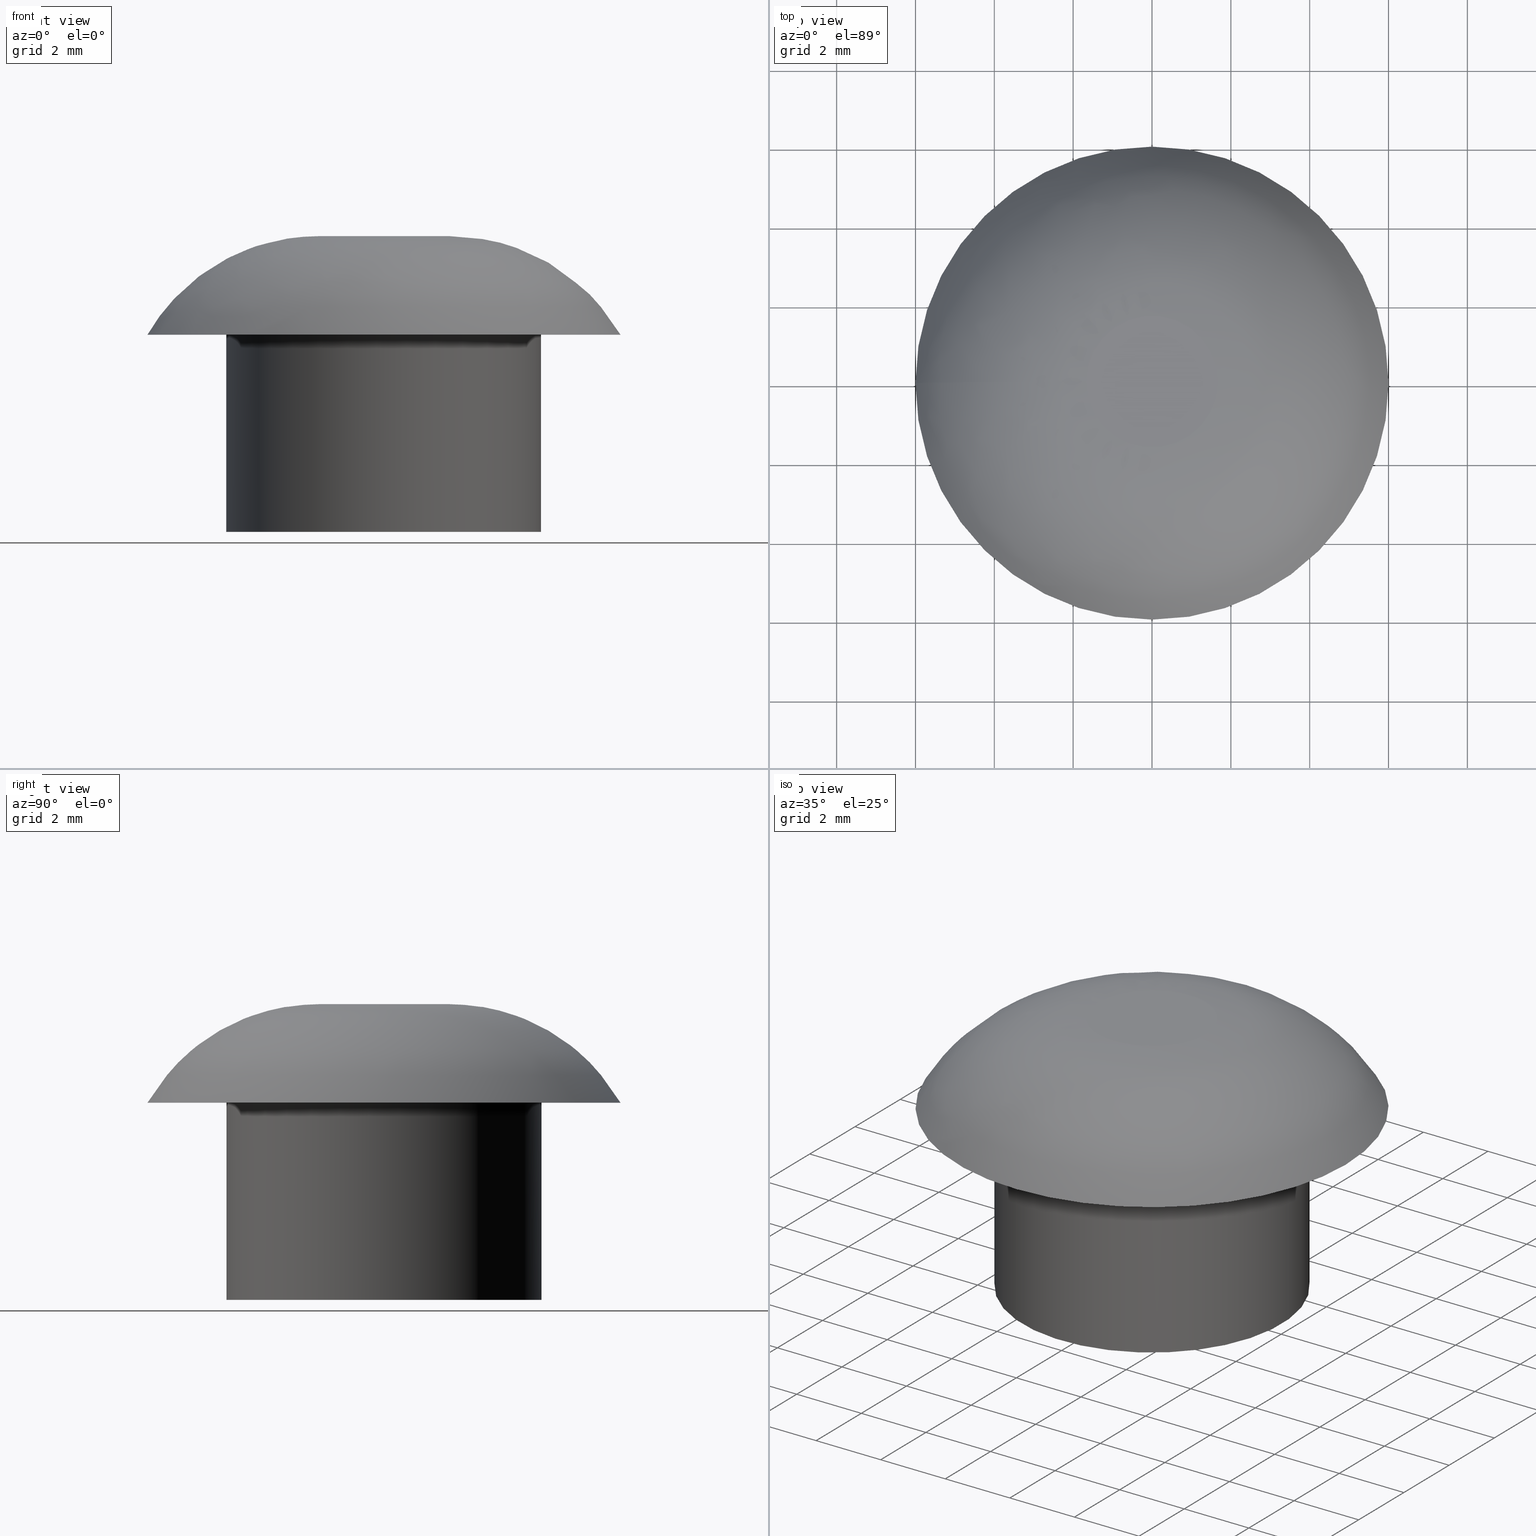
[diagram: canonical four-view strip — front | top / right | iso, engineering-drawing reading convention]
A machine part, canonical four-view strip (front | top / right | iso — engineering-drawing reading convention). The complete STEP part file that produces these views, byte-faithful:
ISO-10303-21;
HEADER;
/* Generated by software containing ST-Developer
 * from STEP Tools, Inc. (www.steptools.com) 
 */

FILE_DESCRIPTION(
/* description */ (''),
/* implementation_level */ '2;1');

FILE_NAME(
/* name */ 
'Q:\\Catalogo\\2_Accessori Dierre\\Per Download Web e catalogo cartace
o\\CATALOGO TAPPI DI CHIUSURA\\PAGINA 88\\CTPTF0000014.stp',
/* time_stamp */ '2018-10-29T10:04:48+01:00',
/* author */ ('fzagni'),
/* organization */ (''),
/* preprocessor_version */ 'ST-DEVELOPER v16.1',
/* originating_system */ 'Autodesk Inventor 2016',
/* authorisation */ '');

FILE_SCHEMA (('AUTOMOTIVE_DESIGN { 1 0 10303 214 3 1 1 }'));
ENDSEC;

DATA;
#10=MECHANICAL_DESIGN_GEOMETRIC_PRESENTATION_REPRESENTATION('',(#13),#187);
#11=SHAPE_REPRESENTATION_RELATIONSHIP('SRR','None',#196,#12);
#12=ADVANCED_BREP_SHAPE_REPRESENTATION('',(#14),#186);
#13=STYLED_ITEM('',(#205),#14);
#14=MANIFOLD_SOLID_BREP('Solido1',#90);
#15=(
BOUNDED_CURVE()
B_SPLINE_CURVE(2,(#179,#180,#181),.UNSPECIFIED.,.F.,.F.)
B_SPLINE_CURVE_WITH_KNOTS((3,3),(-1.5707963267949,-0.523598775598299),
 .UNSPECIFIED.)
CURVE()
GEOMETRIC_REPRESENTATION_ITEM()
RATIONAL_B_SPLINE_CURVE((1.,0.866025403784438,1.))
REPRESENTATION_ITEM('')
);
#16=(
BOUNDED_SURFACE()
B_SPLINE_SURFACE(2,2,((#150,#151,#152,#153,#154,#155,#156,#157,#158),(#159,
#160,#161,#162,#163,#164,#165,#166,#167),(#168,#169,#170,#171,#172,#173,
#174,#175,#176)),.UNSPECIFIED.,.F.,.T.,.F.)
B_SPLINE_SURFACE_WITH_KNOTS((3,3),(3,2,2,2,3),(0.523598775598299,1.5707963267949),
(-3.14159265358979,-1.5707963267949,0.,1.5707963267949,3.14159265358979),
 .UNSPECIFIED.)
GEOMETRIC_REPRESENTATION_ITEM()
RATIONAL_B_SPLINE_SURFACE(((1.,0.707106781186548,1.,0.707106781186548,1.,
0.707106781186548,1.,0.707106781186548,1.),(0.866025403784438,0.612372435695794,
0.866025403784438,0.612372435695794,0.866025403784438,0.612372435695794,
0.866025403784438,0.612372435695794,0.866025403784438),(1.,0.707106781186548,
1.,0.707106781186548,1.,0.707106781186548,1.,0.707106781186548,1.)))
REPRESENTATION_ITEM('')
SURFACE()
);
#17=PLANE('',#98);
#18=PLANE('',#99);
#19=PLANE('',#103);
#20=PLANE('',#104);
#21=FACE_BOUND('',#33,.T.);
#22=FACE_BOUND('',#35,.T.);
#23=FACE_BOUND('',#37,.T.);
#24=FACE_BOUND('',#39,.T.);
#25=FACE_OUTER_BOUND('',#32,.T.);
#26=FACE_OUTER_BOUND('',#34,.T.);
#27=FACE_OUTER_BOUND('',#36,.T.);
#28=FACE_OUTER_BOUND('',#38,.T.);
#29=FACE_OUTER_BOUND('',#40,.T.);
#30=FACE_OUTER_BOUND('',#41,.T.);
#31=FACE_OUTER_BOUND('',#42,.T.);
#32=EDGE_LOOP('',(#65));
#33=EDGE_LOOP('',(#66));
#34=EDGE_LOOP('',(#67));
#35=EDGE_LOOP('',(#68));
#36=EDGE_LOOP('',(#69));
#37=EDGE_LOOP('',(#70));
#38=EDGE_LOOP('',(#71,#72));
#39=EDGE_LOOP('',(#73));
#40=EDGE_LOOP('',(#74,#75,#76,#77,#78));
#41=EDGE_LOOP('',(#79));
#42=EDGE_LOOP('',(#80));
#43=CIRCLE('',#93,3.25);
#44=CIRCLE('',#94,3.25);
#45=CIRCLE('',#96,4.);
#46=CIRCLE('',#97,4.);
#47=CIRCLE('',#100,6.);
#48=CIRCLE('',#101,6.);
#49=CIRCLE('',#102,1.66987298107781);
#50=VERTEX_POINT('',#135);
#51=VERTEX_POINT('',#137);
#52=VERTEX_POINT('',#140);
#53=VERTEX_POINT('',#142);
#54=VERTEX_POINT('',#146);
#55=VERTEX_POINT('',#147);
#56=VERTEX_POINT('',#177);
#57=EDGE_CURVE('',#50,#50,#43,.T.);
#58=EDGE_CURVE('',#51,#51,#44,.T.);
#59=EDGE_CURVE('',#52,#52,#45,.T.);
#60=EDGE_CURVE('',#53,#53,#46,.T.);
#61=EDGE_CURVE('',#54,#55,#47,.T.);
#62=EDGE_CURVE('',#55,#54,#48,.T.);
#63=EDGE_CURVE('',#56,#56,#49,.T.);
#64=EDGE_CURVE('',#56,#55,#15,.T.);
#65=ORIENTED_EDGE('',*,*,#57,.F.);
#66=ORIENTED_EDGE('',*,*,#58,.F.);
#67=ORIENTED_EDGE('',*,*,#59,.F.);
#68=ORIENTED_EDGE('',*,*,#60,.F.);
#69=ORIENTED_EDGE('',*,*,#59,.T.);
#70=ORIENTED_EDGE('',*,*,#57,.T.);
#71=ORIENTED_EDGE('',*,*,#61,.T.);
#72=ORIENTED_EDGE('',*,*,#62,.T.);
#73=ORIENTED_EDGE('',*,*,#60,.T.);
#74=ORIENTED_EDGE('',*,*,#63,.T.);
#75=ORIENTED_EDGE('',*,*,#64,.T.);
#76=ORIENTED_EDGE('',*,*,#61,.F.);
#77=ORIENTED_EDGE('',*,*,#62,.F.);
#78=ORIENTED_EDGE('',*,*,#64,.F.);
#79=ORIENTED_EDGE('',*,*,#63,.F.);
#80=ORIENTED_EDGE('',*,*,#58,.T.);
#81=CYLINDRICAL_SURFACE('',#92,3.25);
#82=CYLINDRICAL_SURFACE('',#95,4.);
#83=ADVANCED_FACE('',(#25,#21),#81,.F.);
#84=ADVANCED_FACE('',(#26,#22),#82,.T.);
#85=ADVANCED_FACE('',(#27,#23),#17,.F.);
#86=ADVANCED_FACE('',(#28,#24),#18,.F.);
#87=ADVANCED_FACE('',(#29),#16,.T.);
#88=ADVANCED_FACE('',(#30),#19,.T.);
#89=ADVANCED_FACE('',(#31),#20,.F.);
#90=CLOSED_SHELL('',(#83,#84,#85,#86,#87,#88,#89));
#91=AXIS2_PLACEMENT_3D('placement',#133,#105,#106);
#92=AXIS2_PLACEMENT_3D('',#134,#107,#108);
#93=AXIS2_PLACEMENT_3D('',#136,#109,#110);
#94=AXIS2_PLACEMENT_3D('',#138,#111,#112);
#95=AXIS2_PLACEMENT_3D('',#139,#113,#114);
#96=AXIS2_PLACEMENT_3D('',#141,#115,#116);
#97=AXIS2_PLACEMENT_3D('',#143,#117,#118);
#98=AXIS2_PLACEMENT_3D('',#144,#119,#120);
#99=AXIS2_PLACEMENT_3D('',#145,#121,#122);
#100=AXIS2_PLACEMENT_3D('',#148,#123,#124);
#101=AXIS2_PLACEMENT_3D('',#149,#125,#126);
#102=AXIS2_PLACEMENT_3D('',#178,#127,#128);
#103=AXIS2_PLACEMENT_3D('',#182,#129,#130);
#104=AXIS2_PLACEMENT_3D('',#183,#131,#132);
#105=DIRECTION('axis',(0.,0.,1.));
#106=DIRECTION('refdir',(1.,0.,0.));
#107=DIRECTION('center_axis',(0.,0.,-1.));
#108=DIRECTION('ref_axis',(1.,0.,0.));
#109=DIRECTION('center_axis',(0.,0.,1.));
#110=DIRECTION('ref_axis',(1.,0.,0.));
#111=DIRECTION('center_axis',(0.,0.,-1.));
#112=DIRECTION('ref_axis',(1.,0.,0.));
#113=DIRECTION('center_axis',(0.,0.,-1.));
#114=DIRECTION('ref_axis',(1.,0.,0.));
#115=DIRECTION('center_axis',(0.,0.,-1.));
#116=DIRECTION('ref_axis',(1.,0.,0.));
#117=DIRECTION('center_axis',(0.,0.,1.));
#118=DIRECTION('ref_axis',(1.,0.,0.));
#119=DIRECTION('center_axis',(0.,0.,1.));
#120=DIRECTION('ref_axis',(1.,0.,0.));
#121=DIRECTION('center_axis',(0.,0.,1.));
#122=DIRECTION('ref_axis',(1.,0.,0.));
#123=DIRECTION('center_axis',(0.,0.,-1.));
#124=DIRECTION('ref_axis',(-1.,0.,0.));
#125=DIRECTION('center_axis',(0.,0.,-1.));
#126=DIRECTION('ref_axis',(-1.,0.,0.));
#127=DIRECTION('center_axis',(0.,0.,-1.));
#128=DIRECTION('ref_axis',(1.,0.,0.));
#129=DIRECTION('center_axis',(0.,0.,1.));
#130=DIRECTION('ref_axis',(1.,0.,0.));
#131=DIRECTION('center_axis',(0.,0.,1.));
#132=DIRECTION('ref_axis',(1.,0.,0.));
#133=CARTESIAN_POINT('',(0.,0.,0.));
#134=CARTESIAN_POINT('Origin',(0.,0.,0.));
#135=CARTESIAN_POINT('',(-3.25,3.9801020972289E-16,-5.));
#136=CARTESIAN_POINT('Origin',(0.,0.,-5.));
#137=CARTESIAN_POINT('',(-3.25,3.9801020972289E-16,0.));
#138=CARTESIAN_POINT('Origin',(0.,0.,0.));
#139=CARTESIAN_POINT('Origin',(0.,0.,0.));
#140=CARTESIAN_POINT('',(-4.,4.89858719658941E-16,-5.));
#141=CARTESIAN_POINT('Origin',(0.,0.,-5.));
#142=CARTESIAN_POINT('',(-4.,4.89858719658941E-16,0.));
#143=CARTESIAN_POINT('Origin',(0.,0.,0.));
#144=CARTESIAN_POINT('Origin',(2.72118023435153E-16,0.,-5.));
#145=CARTESIAN_POINT('Origin',(-3.69627624575467E-16,-1.54197642309049E-16,
0.));
#146=CARTESIAN_POINT('',(6.,7.34788079488412E-16,0.));
#147=CARTESIAN_POINT('',(-6.,0.,0.));
#148=CARTESIAN_POINT('Origin',(0.,0.,0.));
#149=CARTESIAN_POINT('Origin',(0.,0.,0.));
#150=CARTESIAN_POINT('Ctrl Pts',(-6.,0.,0.));
#151=CARTESIAN_POINT('Ctrl Pts',(-6.,6.,0.));
#152=CARTESIAN_POINT('Ctrl Pts',(0.,6.,0.));
#153=CARTESIAN_POINT('Ctrl Pts',(6.,6.,0.));
#154=CARTESIAN_POINT('Ctrl Pts',(6.,0.,0.));
#155=CARTESIAN_POINT('Ctrl Pts',(6.,-6.,0.));
#156=CARTESIAN_POINT('Ctrl Pts',(0.,-6.,0.));
#157=CARTESIAN_POINT('Ctrl Pts',(-6.,-6.,0.));
#158=CARTESIAN_POINT('Ctrl Pts',(-6.,0.,0.));
#159=CARTESIAN_POINT('Ctrl Pts',(-4.55662432702594,0.,2.5));
#160=CARTESIAN_POINT('Ctrl Pts',(-4.55662432702593,4.55662432702593,2.5));
#161=CARTESIAN_POINT('Ctrl Pts',(0.,4.55662432702594,2.5));
#162=CARTESIAN_POINT('Ctrl Pts',(4.55662432702593,4.55662432702593,2.5));
#163=CARTESIAN_POINT('Ctrl Pts',(4.55662432702594,0.,2.5));
#164=CARTESIAN_POINT('Ctrl Pts',(4.55662432702593,-4.55662432702593,2.5));
#165=CARTESIAN_POINT('Ctrl Pts',(0.,-4.55662432702594,2.5));
#166=CARTESIAN_POINT('Ctrl Pts',(-4.55662432702593,-4.55662432702593,2.5));
#167=CARTESIAN_POINT('Ctrl Pts',(-4.55662432702594,0.,2.5));
#168=CARTESIAN_POINT('Ctrl Pts',(-1.66987298107781,0.,2.5));
#169=CARTESIAN_POINT('Ctrl Pts',(-1.66987298107781,1.66987298107781,2.5));
#170=CARTESIAN_POINT('Ctrl Pts',(0.,1.66987298107781,2.5));
#171=CARTESIAN_POINT('Ctrl Pts',(1.66987298107781,1.66987298107781,2.5));
#172=CARTESIAN_POINT('Ctrl Pts',(1.66987298107781,0.,2.5));
#173=CARTESIAN_POINT('Ctrl Pts',(1.66987298107781,-1.66987298107781,2.5));
#174=CARTESIAN_POINT('Ctrl Pts',(0.,-1.66987298107781,2.5));
#175=CARTESIAN_POINT('Ctrl Pts',(-1.66987298107781,-1.66987298107781,2.5));
#176=CARTESIAN_POINT('Ctrl Pts',(-1.66987298107781,0.,2.5));
#177=CARTESIAN_POINT('',(-1.66987298107781,2.04500460125959E-16,2.5));
#178=CARTESIAN_POINT('Origin',(0.,0.,2.5));
#179=CARTESIAN_POINT('Ctrl Pts',(-1.66987298107781,0.,2.5));
#180=CARTESIAN_POINT('Ctrl Pts',(-4.55662432702594,0.,2.5));
#181=CARTESIAN_POINT('Ctrl Pts',(-6.,0.,0.));
#182=CARTESIAN_POINT('Origin',(-3.69627624575467E-16,-1.54197642309049E-16,
2.5));
#183=CARTESIAN_POINT('Origin',(-3.69627624575467E-16,-1.54197642309049E-16,
0.));
#184=UNCERTAINTY_MEASURE_WITH_UNIT(LENGTH_MEASURE(0.01),#188,
'DISTANCE_ACCURACY_VALUE',
'Maximum model space distance between geometric entities at asserted c
onnectivities');
#185=UNCERTAINTY_MEASURE_WITH_UNIT(LENGTH_MEASURE(1.E-6),#188,
'DISTANCE_ACCURACY_VALUE',
'Maximum model space distance between geometric entities at asserted c
onnectivities');
#186=(
GEOMETRIC_REPRESENTATION_CONTEXT(3)
GLOBAL_UNCERTAINTY_ASSIGNED_CONTEXT((#184))
GLOBAL_UNIT_ASSIGNED_CONTEXT((#188,#191,#189))
REPRESENTATION_CONTEXT('','3D')
);
#187=(
GEOMETRIC_REPRESENTATION_CONTEXT(3)
GLOBAL_UNCERTAINTY_ASSIGNED_CONTEXT((#185))
GLOBAL_UNIT_ASSIGNED_CONTEXT((#188,#191,#189))
REPRESENTATION_CONTEXT('','3D')
);
#188=(
LENGTH_UNIT()
NAMED_UNIT(*)
SI_UNIT(.MILLI.,.METRE.)
);
#189=(
NAMED_UNIT(*)
SI_UNIT($,.STERADIAN.)
SOLID_ANGLE_UNIT()
);
#190=DIMENSIONAL_EXPONENTS(0.,0.,0.,0.,0.,0.,0.);
#191=(
CONVERSION_BASED_UNIT('degree',#193)
NAMED_UNIT(#190)
PLANE_ANGLE_UNIT()
);
#192=(
NAMED_UNIT(*)
PLANE_ANGLE_UNIT()
SI_UNIT($,.RADIAN.)
);
#193=PLANE_ANGLE_MEASURE_WITH_UNIT(PLANE_ANGLE_MEASURE(0.01745329252),#192);
#194=SHAPE_DEFINITION_REPRESENTATION(#195,#196);
#195=PRODUCT_DEFINITION_SHAPE('',$,#198);
#196=SHAPE_REPRESENTATION('',(#91),#186);
#197=PRODUCT_DEFINITION_CONTEXT('part definition',#202,'design');
#198=PRODUCT_DEFINITION('440000010079','440000010079',#199,#197);
#199=PRODUCT_DEFINITION_FORMATION('','A',#204);
#200=PRODUCT_RELATED_PRODUCT_CATEGORY('440000010079','440000010079',(#204));
#201=APPLICATION_PROTOCOL_DEFINITION('international standard',
'automotive_design',2009,#202);
#202=APPLICATION_CONTEXT(
'Core Data for Automotive Mechanical Design Process');
#203=PRODUCT_CONTEXT('part definition',#202,'mechanical');
#204=PRODUCT('440000010079','440000010079',$,(#203));
#205=PRESENTATION_STYLE_ASSIGNMENT((#206));
#206=SURFACE_STYLE_USAGE(.BOTH.,#207);
#207=SURFACE_SIDE_STYLE('',(#208));
#208=SURFACE_STYLE_FILL_AREA(#209);
#209=FILL_AREA_STYLE('',(#210));
#210=FILL_AREA_STYLE_COLOUR('',#211);
#211=COLOUR_RGB('',0.16078431372549,0.16078431372549,0.16078431372549);
ENDSEC;
END-ISO-10303-21;
